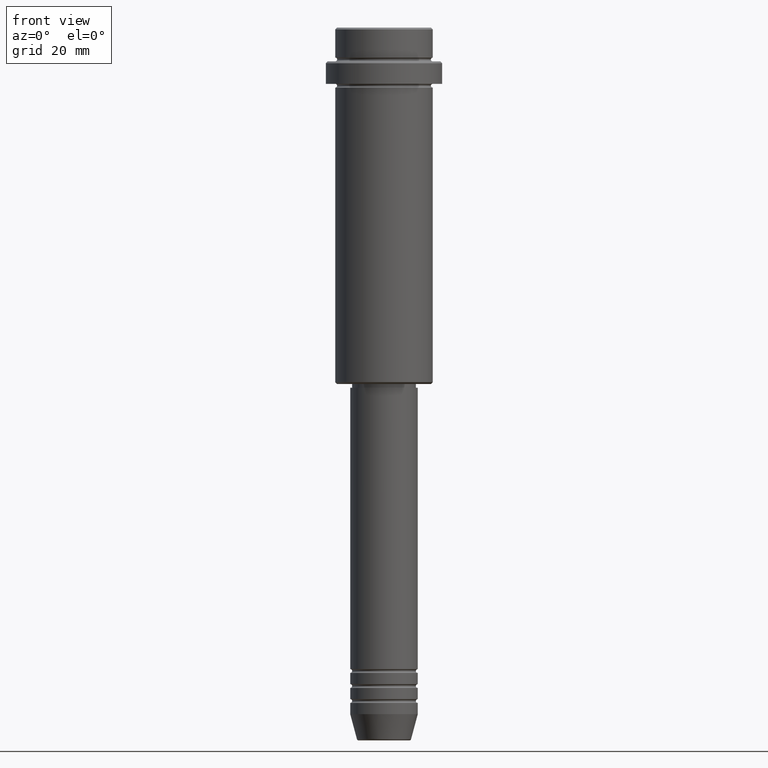
[diagram: clean part render]
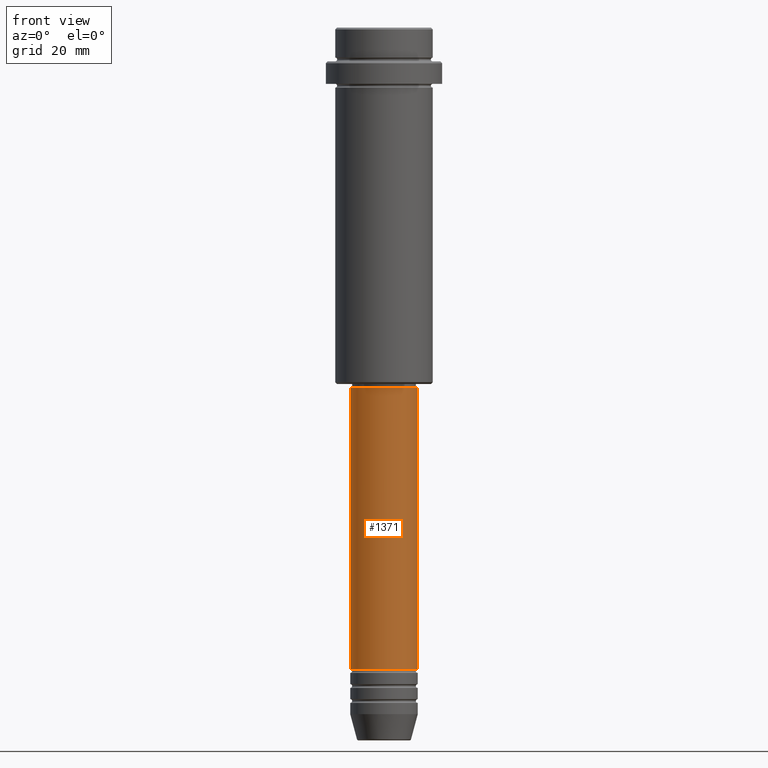
[diagram: same view with one face highlighted and labeled with its STEP entity id]
A machine part, front view. The second image highlights one B-rep face of the part: STEP entity #1371.
In plain terms, the highlighted cylindrical surface (edge-blend (fillet) strip) has radius 9 mm, axis along (-0, -0, 1).
Its self-contained STEP definition (entity closure, byte-faithful):
#72 = CARTESIAN_POINT ( 'NONE',  ( 0.000000000000000000, 0.000000000000000000, 0.000000000000000000 ) ) ;
#111 = DIRECTION ( 'NONE',  ( -0.000000000000000000, -0.000000000000000000, 1.000000000000000000 ) ) ;
#188 = FACE_OUTER_BOUND ( 'NONE', #570, .T. ) ;
#209 = CARTESIAN_POINT ( 'NONE',  ( 0.000000000000000000, 0.000000000000000000, -170.9999999999998863 ) ) ;
#336 = VERTEX_POINT ( 'NONE', #1055 ) ;
#346 = CARTESIAN_POINT ( 'NONE',  ( 9.000000000000001776, 0.000000000000000000, 0.000000000000000000 ) ) ;
#379 = DIRECTION ( 'NONE',  ( -0.000000000000000000, -0.000000000000000000, 1.000000000000000000 ) ) ;
#401 = AXIS2_PLACEMENT_3D ( 'NONE', #72, #521, #950 ) ;
#462 = ORIENTED_EDGE ( 'NONE', *, *, #1160, .T. ) ;
#521 = DIRECTION ( 'NONE',  ( -0.000000000000000000, -0.000000000000000000, 1.000000000000000000 ) ) ;
#559 = AXIS2_PLACEMENT_3D ( 'NONE', #209, #1301, #1195 ) ;
#570 = EDGE_LOOP ( 'NONE', ( #676, #1405, #462, #1285 ) ) ;
#593 = CARTESIAN_POINT ( 'NONE',  ( -9.000000000000001776, 1.102182119232617911E-15, -96.00000000000000000 ) ) ;
#618 = DIRECTION ( 'NONE',  ( 1.000000000000000000, 0.000000000000000000, 0.000000000000000000 ) ) ;
#665 = DIRECTION ( 'NONE',  ( -0.000000000000000000, -0.000000000000000000, 1.000000000000000000 ) ) ;
#674 = LINE ( 'NONE', #1332, #1242 ) ;
#676 = ORIENTED_EDGE ( 'NONE', *, *, #1089, .F. ) ;
#781 = CARTESIAN_POINT ( 'NONE',  ( 9.000000000000001776, 0.000000000000000000, -96.00000000000000000 ) ) ;
#950 = DIRECTION ( 'NONE',  ( 1.000000000000000000, 0.000000000000000000, 0.000000000000000000 ) ) ;
#977 = EDGE_CURVE ( 'NONE', #1001, #336, #1064, .T. ) ;
#1001 = VERTEX_POINT ( 'NONE', #1072 ) ;
#1055 = CARTESIAN_POINT ( 'NONE',  ( 9.000000000000000000, 0.000000000000000000, -170.9999999999998863 ) ) ;
#1057 = CYLINDRICAL_SURFACE ( 'NONE', #401, 9.000000000000001776 ) ;
#1064 = CIRCLE ( 'NONE', #559, 9.000000000000000000 ) ;
#1065 = VECTOR ( 'NONE', #665, 1000.000000000000000 ) ;
#1071 = VERTEX_POINT ( 'NONE', #781 ) ;
#1072 = CARTESIAN_POINT ( 'NONE',  ( -9.000000000000000000, 1.102182119232617714E-15, -170.9999999999998863 ) ) ;
#1084 = CIRCLE ( 'NONE', #1293, 9.000000000000001776 ) ;
#1089 = EDGE_CURVE ( 'NONE', #1001, #1254, #674, .T. ) ;
#1160 = EDGE_CURVE ( 'NONE', #336, #1071, #1208, .T. ) ;
#1195 = DIRECTION ( 'NONE',  ( 1.000000000000000000, 0.000000000000000000, 0.000000000000000000 ) ) ;
#1208 = LINE ( 'NONE', #346, #1065 ) ;
#1242 = VECTOR ( 'NONE', #111, 1000.000000000000000 ) ;
#1254 = VERTEX_POINT ( 'NONE', #593 ) ;
#1273 = EDGE_CURVE ( 'NONE', #1254, #1071, #1084, .T. ) ;
#1285 = ORIENTED_EDGE ( 'NONE', *, *, #1273, .F. ) ;
#1293 = AXIS2_PLACEMENT_3D ( 'NONE', #1352, #379, #618 ) ;
#1301 = DIRECTION ( 'NONE',  ( -0.000000000000000000, -0.000000000000000000, 1.000000000000000000 ) ) ;
#1332 = CARTESIAN_POINT ( 'NONE',  ( -9.000000000000001776, 1.102182119232617911E-15, 0.000000000000000000 ) ) ;
#1352 = CARTESIAN_POINT ( 'NONE',  ( 0.000000000000000000, 0.000000000000000000, -96.00000000000000000 ) ) ;
#1371 = ADVANCED_FACE ( 'NONE', ( #188 ), #1057, .T. ) ;
#1405 = ORIENTED_EDGE ( 'NONE', *, *, #977, .T. ) ;